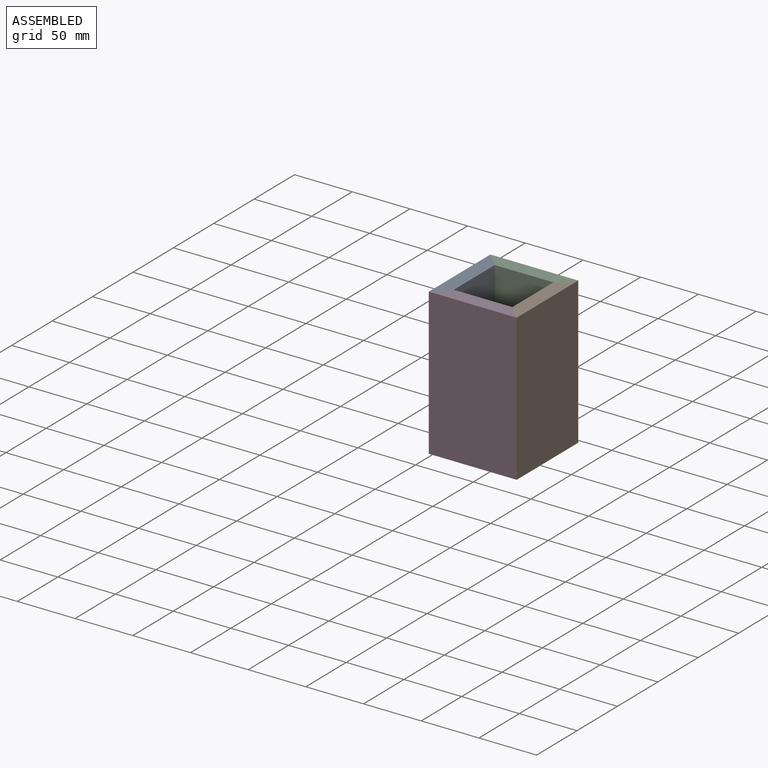
[diagram: assembled view]
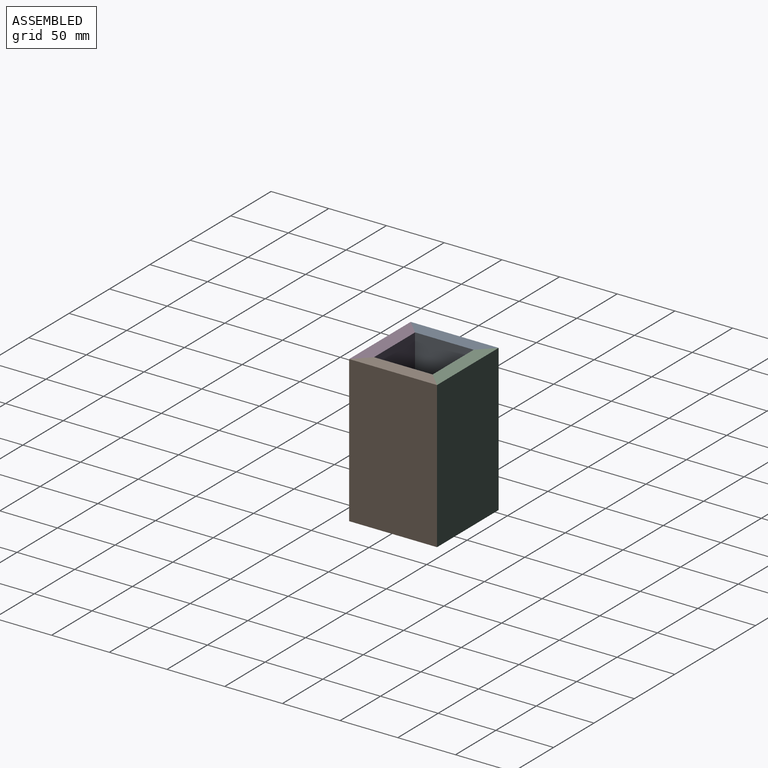
[diagram: assembled view, second angle]
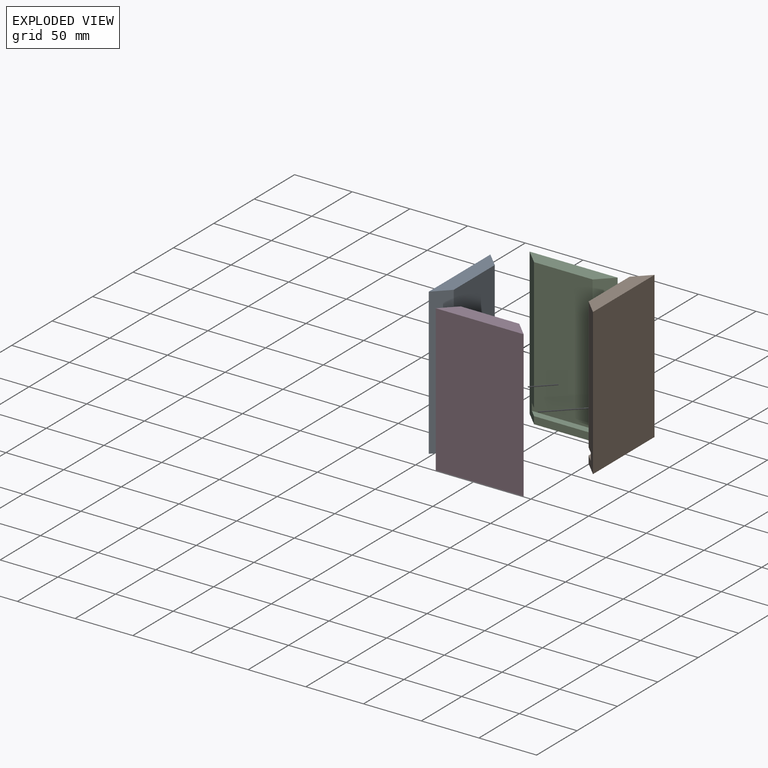
[diagram: exploded view]
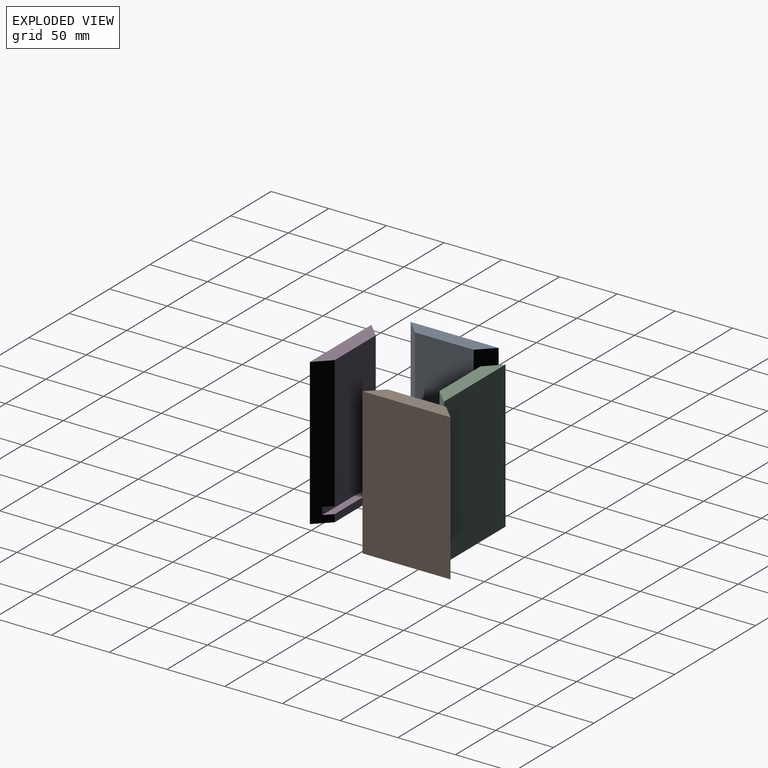
[diagram: exploded view, second angle]
ASSEMBLY  parts=4 mates=3
PART A: 10 faces, bbox 76.2x12.7x127 mm
  f0: plane 50.8x6.35mm, normal (0,1,0), area 322.6mm2, adj f3,f6,f8,f9
  f1: plane 114.3x50.8mm, normal (0,1,0), area 5806.4mm2, adj f2,f4,f8,f9
  f2: plane 76.2x12.7mm, normal (0,0,1), area 806.5mm2, adj f1,f7,f8,f9
  f3: plane 76.2x12.7mm, normal (0,0,-1), area 806.5mm2, adj f0,f7,f8,f9
  f4: plane 63.5x6.35mm, normal (0,0,-1), area 362.9mm2, adj f1,f5,f8,f9
  f5: plane 63.5x6.35mm, normal (0,1,0), area 403.2mm2, adj f4,f6,f8,f9
  f6: plane 63.5x6.35mm, normal (0,0,1), area 362.9mm2, adj f0,f5,f8,f9
  f7: plane 127x76.2mm, normal (0,-1,0), area 9677.4mm2, adj f2,f3,f8,f9
  f8: plane 127x12.7mm, normal (0.71,0.71,0), area 2224mm2, adj f0,f1,f2,f3,f4,f5,f6,f7
  f9: plane 127x12.7mm, normal (-0.71,0.71,0), area 2224mm2, adj f0,f1,f2,f3,f4,f5,f6,f7
PART B: same geometry as A
PART C: same geometry as A
PART D: same geometry as A
PLACE A rot(axis=(0,0,-1),90deg) t=(25.54,4.31,-35.15)mm
PLACE B rot(axis=(0,0,1),90deg) t=(50.94,4.31,-35.15)mm
PLACE C rot(axis=(0,0,-1),180deg) t=(38.24,17.01,-35.15)mm
PLACE D t=(38.24,-8.39,-35.15)mm
MATE planar C.f8 <-> A.f9  axis (-0.71,-0.71,0) through (6.41,36.14,29.74)mm
MATE planar B.f9 <-> D.f8  axis (-0.71,-0.71,0) through (70.07,-27.52,29.74)mm
MATE planar A.f8 <-> D.f9  axis (0.71,-0.71,0) through (6.41,-27.52,29.74)mm
